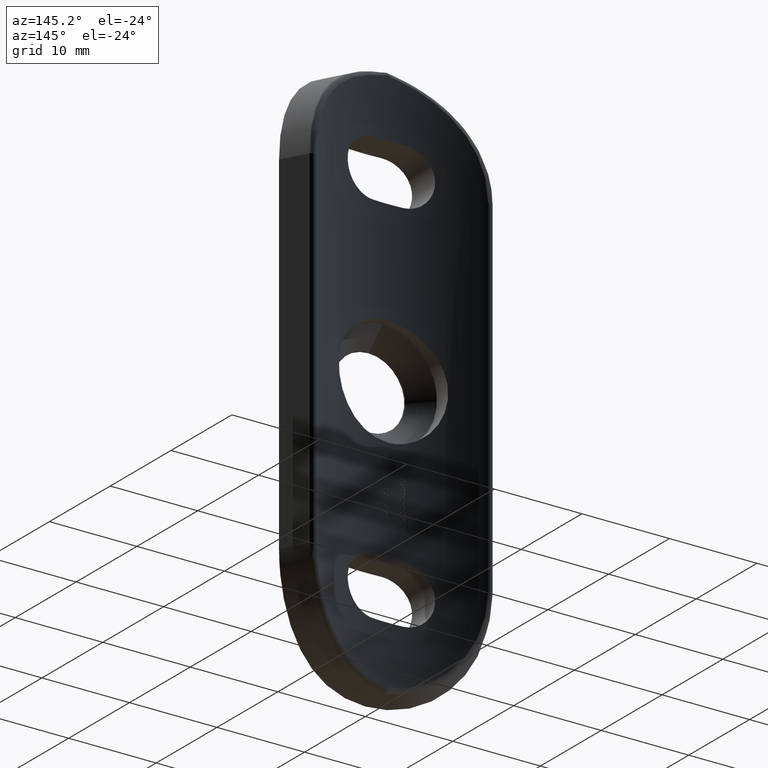
[diagram: clean part render]
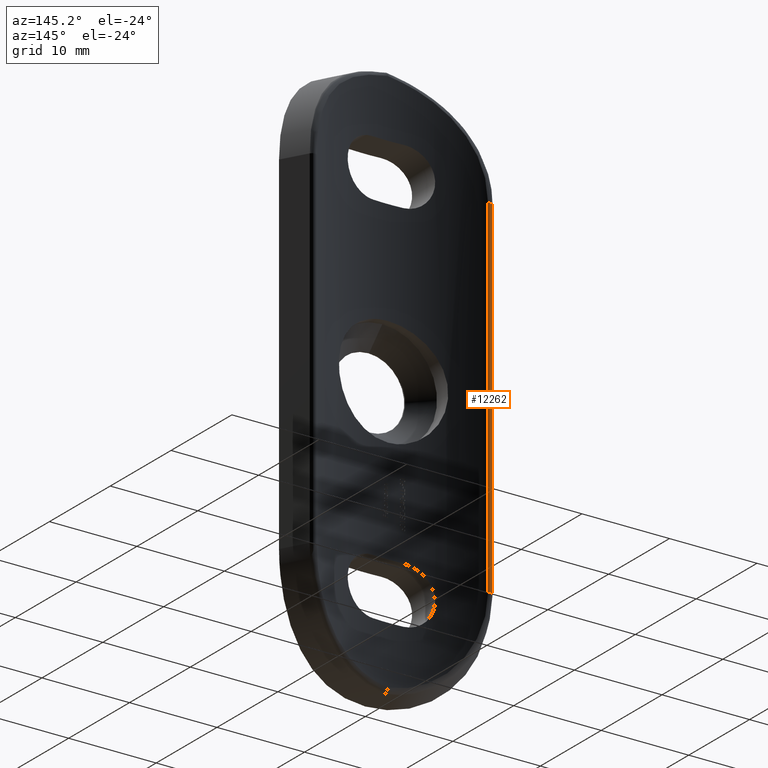
[diagram: same view with one face highlighted and labeled with its STEP entity id]
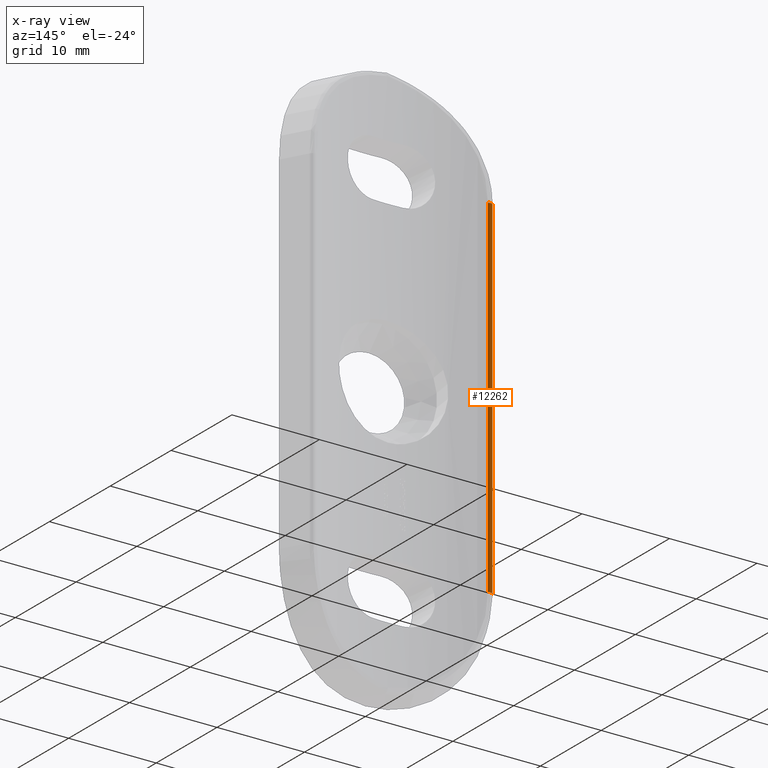
[diagram: x-ray of the same camera — body ghosted, the highlighted face saturated]
A machine part, auxiliary view. The second image highlights one B-rep face of the part: STEP entity #12262.
The next image is the same camera in x-ray: the body ghosted, the highlighted face saturated — about 0% of this face is hidden behind the body in this view.
In plain terms, the highlighted cylindrical surface (edge-blend (fillet) strip) has radius 0.5 mm, axis along (-0, -0, -1).
Its self-contained STEP definition (entity closure, byte-faithful):
#72 = VERTEX_POINT ( 'NONE', #6840 ) ;
#260 = DIRECTION ( 'NONE',  ( 0.0000000000000000000, 0.0000000000000000000, -1.000000000000000000 ) ) ;
#297 = DIRECTION ( 'NONE',  ( 0.0000000000000000000, 0.0000000000000000000, -1.000000000000000000 ) ) ;
#341 = CIRCLE ( 'NONE', #4095, 0.5000000000000004400 ) ;
#617 = EDGE_CURVE ( 'NONE', #9497, #2214, #4829, .T. ) ;
#773 = DIRECTION ( 'NONE',  ( 0.0000000000000000000, 0.0000000000000000000, 1.000000000000000000 ) ) ;
#1415 = CARTESIAN_POINT ( 'NONE',  ( -9.786144100064897000, 6.093847186285947800, 20.00000000000000000 ) ) ;
#1470 = DIRECTION ( 'NONE',  ( -1.000000000000000000, 0.0000000000000000000, 0.0000000000000000000 ) ) ;
#1561 = ORIENTED_EDGE ( 'NONE', *, *, #14934, .F. ) ;
#1970 = LINE ( 'NONE', #12669, #8584 ) ;
#2214 = VERTEX_POINT ( 'NONE', #1415 ) ;
#2547 = CARTESIAN_POINT ( 'NONE',  ( -10.01694938544378600, 5.650305846339864300, 32.00000000000000000 ) ) ;
#2614 = CARTESIAN_POINT ( 'NONE',  ( -10.01694938544378400, 5.650305846339863400, -20.00000000000000400 ) ) ;
#2903 = AXIS2_PLACEMENT_3D ( 'NONE', #2547, #4980, #6224 ) ;
#3772 = CARTESIAN_POINT ( 'NONE',  ( -10.45505487545768000, 5.891269701761550500, 20.00000000000000000 ) ) ;
#3786 = CARTESIAN_POINT ( 'NONE',  ( -10.01694938544378400, 5.650305846339863400, 20.00000000000000000 ) ) ;
#4031 = ORIENTED_EDGE ( 'NONE', *, *, #617, .T. ) ;
#4095 = AXIS2_PLACEMENT_3D ( 'NONE', #2614, #9849, #5430 ) ;
#4805 = EDGE_CURVE ( 'NONE', #9497, #13975, #12118, .T. ) ;
#4829 = CIRCLE ( 'NONE', #10683, 0.5000000000000004400 ) ;
#4980 = DIRECTION ( 'NONE',  ( -0.0000000000000000000, -0.0000000000000000000, -1.000000000000000000 ) ) ;
#5430 = DIRECTION ( 'NONE',  ( -1.000000000000000000, 0.0000000000000000000, 0.0000000000000000000 ) ) ;
#6224 = DIRECTION ( 'NONE',  ( -1.000000000000000000, 0.0000000000000000000, 0.0000000000000000000 ) ) ;
#6339 = CARTESIAN_POINT ( 'NONE',  ( -10.45505487545768000, 5.891269701761550500, 32.00000000000000000 ) ) ;
#6840 = CARTESIAN_POINT ( 'NONE',  ( -9.786144100064897000, 6.093847186285949600, -20.00000000000000400 ) ) ;
#7574 = CARTESIAN_POINT ( 'NONE',  ( -10.45505487545768000, 5.891269701761550500, -20.00000000000000400 ) ) ;
#8568 = EDGE_LOOP ( 'NONE', ( #4031, #1561, #11811, #13827 ) ) ;
#8584 = VECTOR ( 'NONE', #773, 1000.000000000000000 ) ;
#9368 = FACE_OUTER_BOUND ( 'NONE', #8568, .T. ) ;
#9497 = VERTEX_POINT ( 'NONE', #3772 ) ;
#9849 = DIRECTION ( 'NONE',  ( 0.0000000000000000000, 0.0000000000000000000, -1.000000000000000000 ) ) ;
#10508 = CYLINDRICAL_SURFACE ( 'NONE', #2903, 0.5000000000000004400 ) ;
#10634 = EDGE_CURVE ( 'NONE', #13975, #72, #341, .T. ) ;
#10683 = AXIS2_PLACEMENT_3D ( 'NONE', #3786, #260, #1470 ) ;
#11811 = ORIENTED_EDGE ( 'NONE', *, *, #10634, .F. ) ;
#12118 = LINE ( 'NONE', #6339, #14890 ) ;
#12262 = ADVANCED_FACE ( 'NONE', ( #9368 ), #10508, .T. ) ;
#12669 = CARTESIAN_POINT ( 'NONE',  ( -9.786144100064897000, 6.093847186285947800, 32.00000000000000000 ) ) ;
#13827 = ORIENTED_EDGE ( 'NONE', *, *, #4805, .F. ) ;
#13975 = VERTEX_POINT ( 'NONE', #7574 ) ;
#14890 = VECTOR ( 'NONE', #297, 1000.000000000000000 ) ;
#14934 = EDGE_CURVE ( 'NONE', #72, #2214, #1970, .T. ) ;